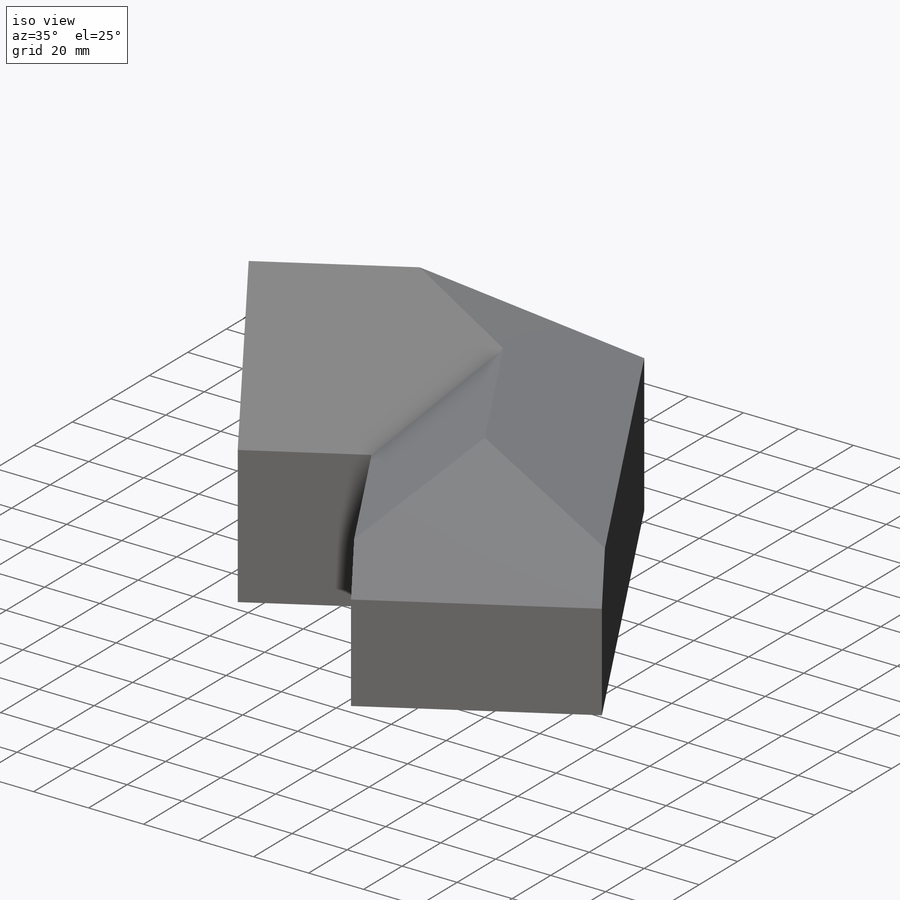
[diagram: iso view]
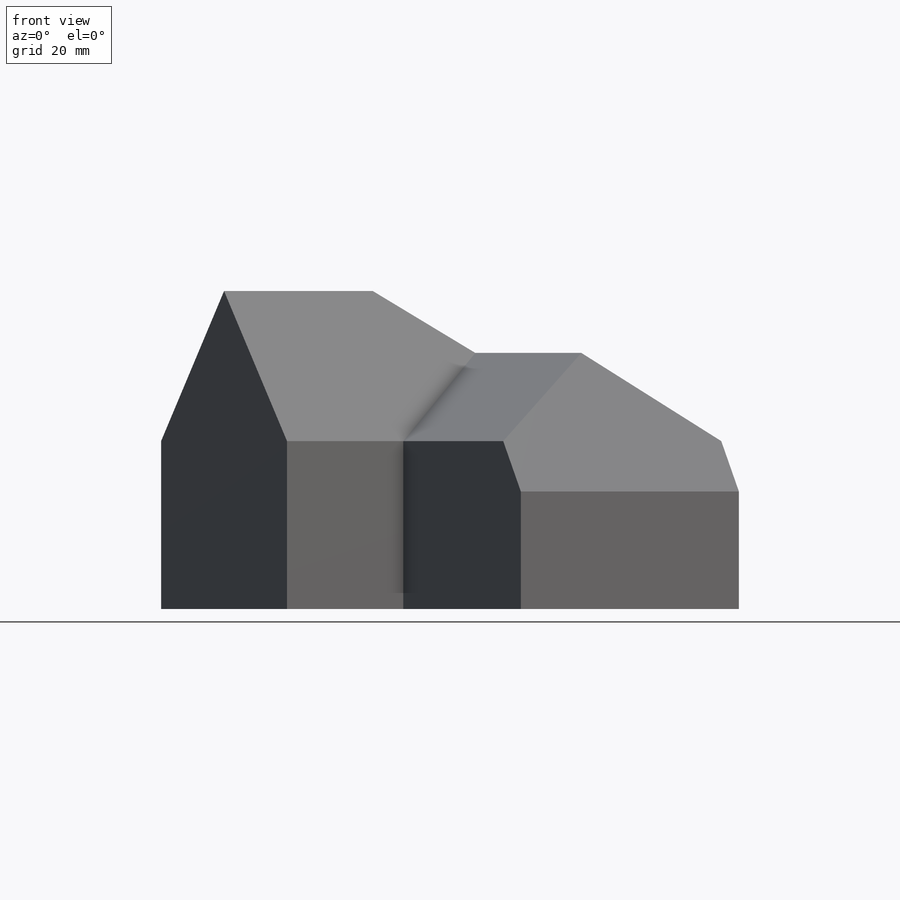
[diagram: front view]
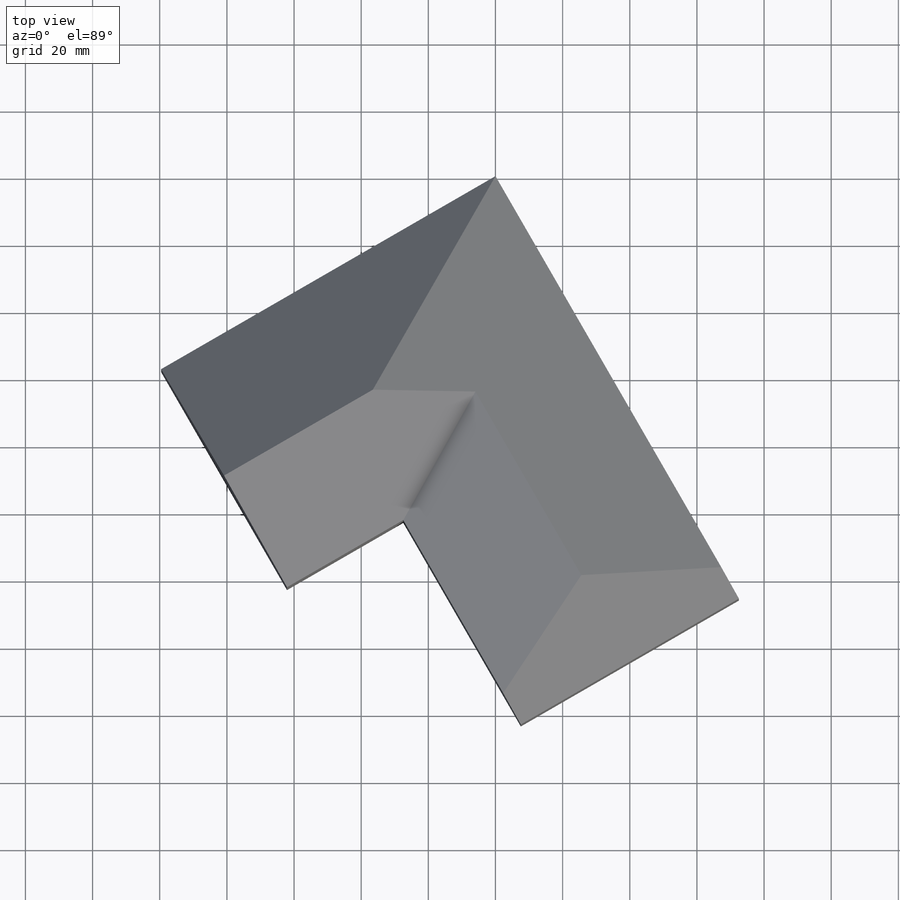
[diagram: top view]
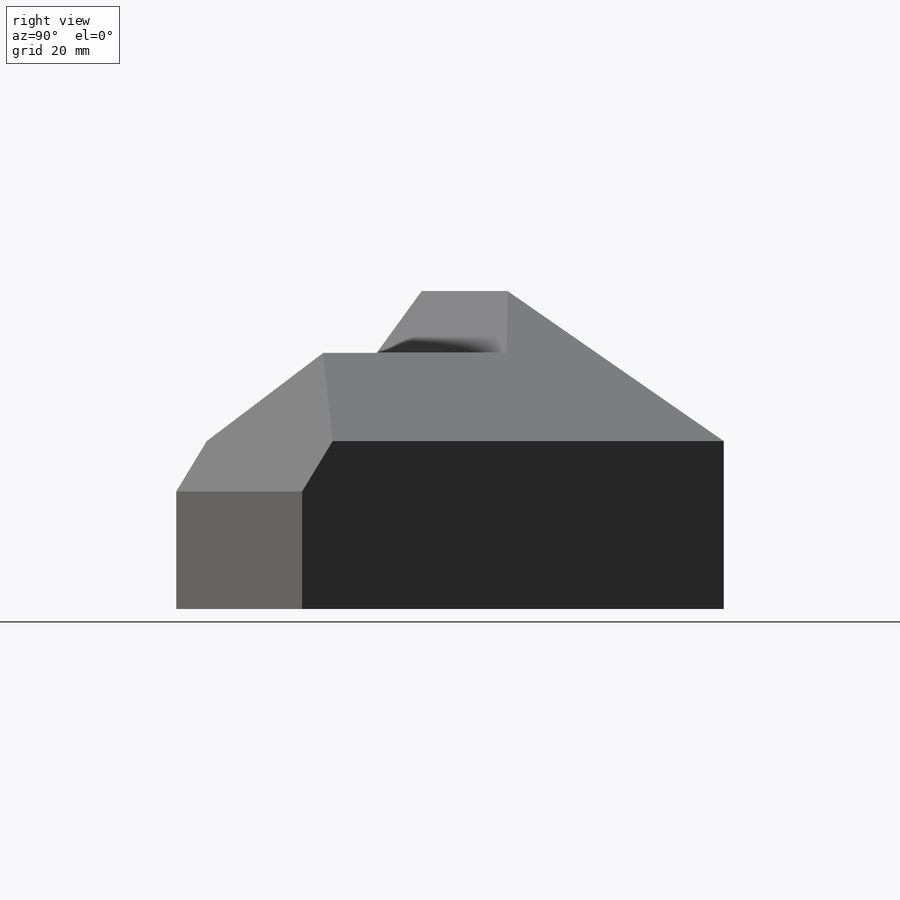
[diagram: right view]
SOLIDWORKS PART (.sldprt)
format: sldprt  version: not decoded by parser v0  size: 262,656 bytes
history: native  units: mm
features: sketch x5, extrude x3, cut_extrude x2, material x1, plane x1 (+14 scaffold rows collapsed)
feature tree (26):
  scaffold x14  (default folders/planes/origin — collapsed)
  material  "Material <not specified>"
  sketch  "Sketch1"  dims[c1.D1=~39.30035mm c2.D1=60.0deg c2.D2=145.0mm c2.D3=115.0mm c2.D4=75.0mm c2.D5=40.0mm]
  extrude  "Extrude1"  Depth=50mm
  sketch  "Sketch2"  dims[c1.D1=~46.342446mm c2.D1=50.0deg]
  extrude  "Extrude2"  Depth=115mm
  sketch  "Sketch3"  dims[c1.D1=~49.229108mm c2.D1=35.0deg]
  extrude  "Extrude3"  Depth=105mm
  sketch  "Sketch4"
  cut_extrude  "Cut-Extrude1"  Depth=155mm
  sketch  "Sketch5"  dims[c1.D1=35.0mm c1.D2=~58.112482mm c2.D2=55.0deg c3.D2=~82.183461mm c4.D2=55.0deg]
  cut_extrude  "Cut-Extrude2"  Depth=75mm
  plane  "BC Dihedral Angle Plane"
decode coverage: 9 of 10 modeling features carry decoded parameters
note: ~ marks probable driven/reference dimensions
note: suppression state not decoded; provenance and decode notes live in map.json
